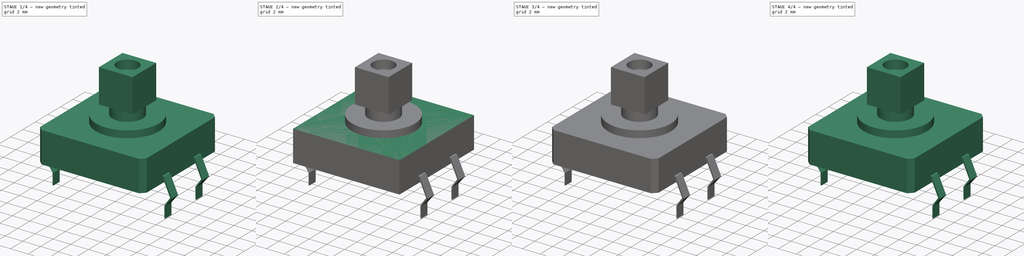
[diagram: build sequence overview — one tinted view per stage of 4, left to right]
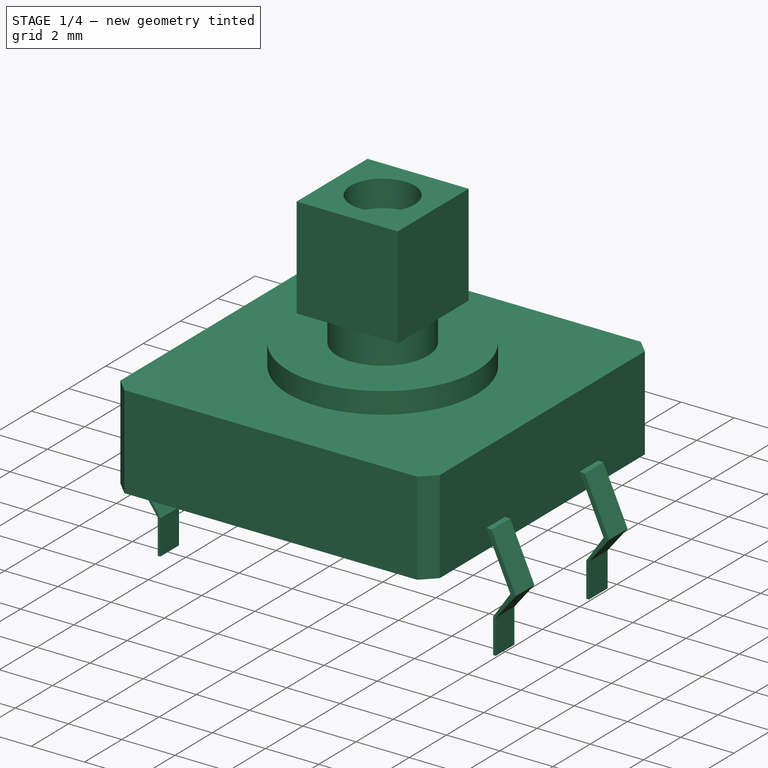
[diagram: stage 1 of 4 — iso view after this stage's code; geometry added in this stage tinted green]
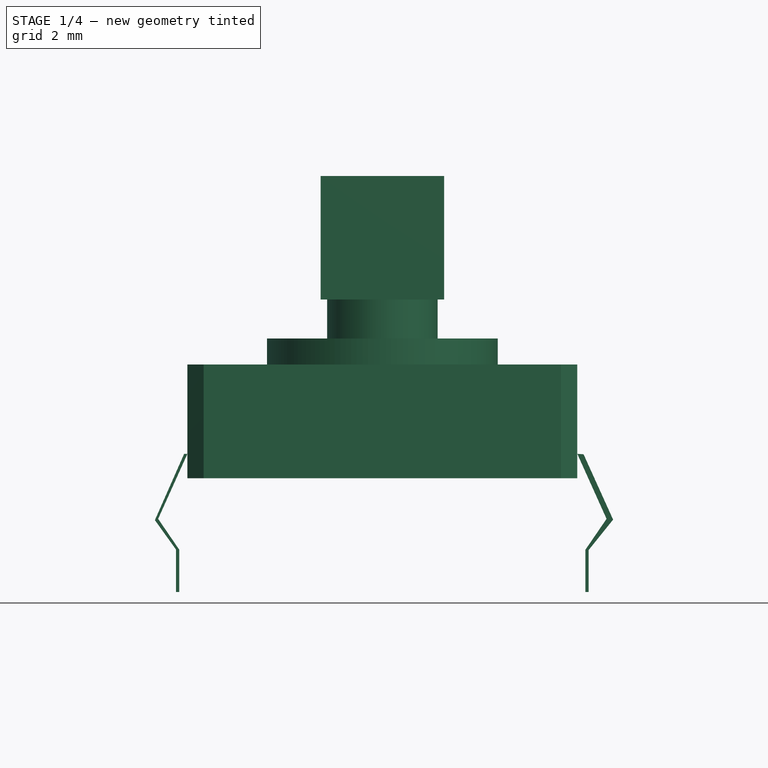
[diagram: stage 1 of 4 — front view after this stage's code; geometry added in this stage tinted green]
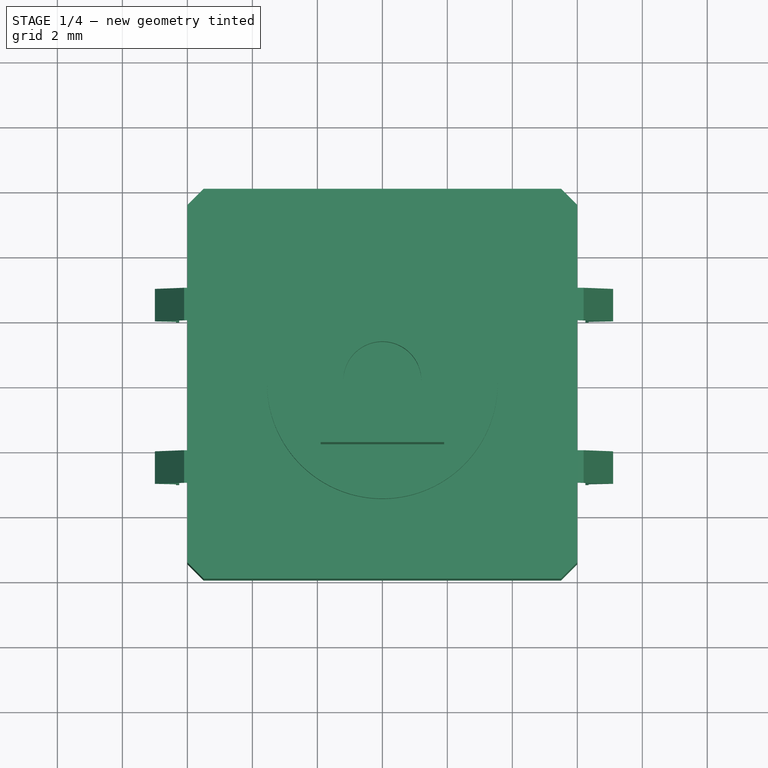
[diagram: stage 1 of 4 — top view after this stage's code; geometry added in this stage tinted green]
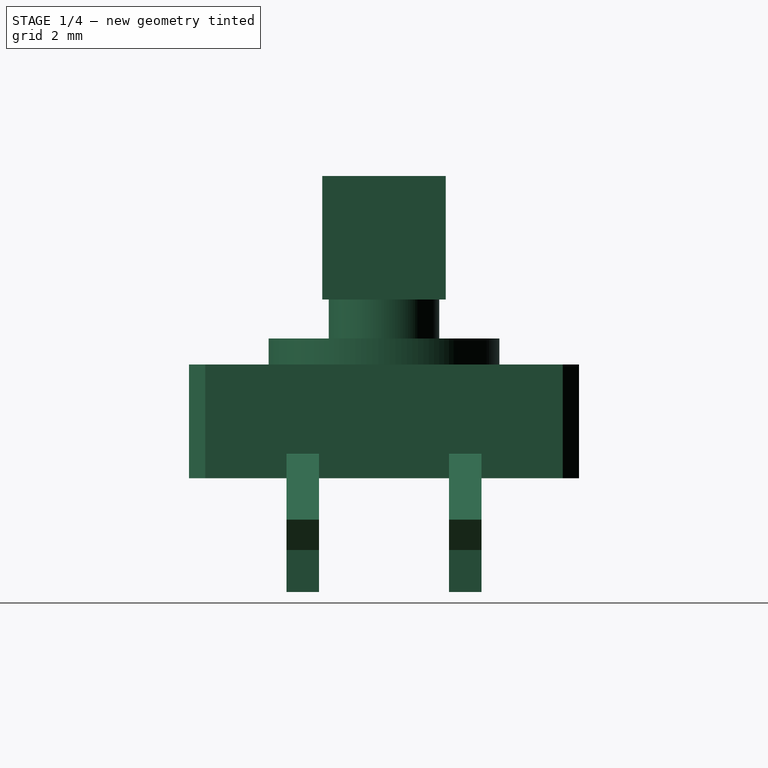
[diagram: stage 1 of 4 — right view after this stage's code; geometry added in this stage tinted green]
FCSTD DOCUMENT  (FreeCAD 0.16R6603 (Git))
Label: PushButton_omron_b3f
License: All rights reserved
LicenseURL: http://en.wikipedia.org/wiki/All_rights_reserved
objects: Sketcher::SketchObject×6, PartDesign::Pad×5, Part::Feature×2, PartDesign::Chamfer×1, PartDesign::Pocket×1, Part::FeaturePython×1, Part::MultiFuse×1
note: 23 computed .brp shape members not serialized (recipe doc carries the construction recipe); baked Part::Feature solids carry a one-line shape summary decoded from their .brp

FEATURE [Sketcher::SketchObject] Sketch005
  Placement = pos=(0,3,0) rot=(1,0,0;1.5708rad)
  sketch-geometry (16):
    g0: LineSegment StartX=12 StartY=0.75 StartZ=0 EndX=12.9 EndY=-1.25 EndZ=0
    g1: LineSegment StartX=12.9 StartY=-1.25 StartZ=0 EndX=12.25 EndY=-2.2 EndZ=0
    g2: LineSegment StartX=12.25 StartY=-2.2 StartZ=0 EndX=12.25 EndY=-3.5 EndZ=0
    g3: LineSegment StartX=0 StartY=0.75 StartZ=0 EndX=-0.9 EndY=-1.25 EndZ=0
    g4: LineSegment StartX=-0.9 StartY=-1.25 StartZ=0 EndX=-0.25 EndY=-2.2 EndZ=0
    g5: LineSegment StartX=-0.25 StartY=-2.2 StartZ=0 EndX=-0.25 EndY=-3.5 EndZ=0
    g6: LineSegment StartX=0 StartY=0.75 StartZ=0 EndX=-0.1 EndY=0.75 EndZ=0
    g7: LineSegment StartX=-0.1 StartY=0.75 StartZ=0 EndX=-1 EndY=-1.29007 EndZ=0
    g8: LineSegment StartX=-1 StartY=-1.29007 StartZ=0 EndX=-0.35 EndY=-2.19487 EndZ=0
    g9: LineSegment StartX=-0.35 StartY=-2.19487 StartZ=0 EndX=-0.35 EndY=-3.5 EndZ=0
    g10: LineSegment StartX=-0.35 StartY=-3.5 StartZ=0 EndX=-0.25 EndY=-3.5 EndZ=0
    g11: LineSegment StartX=12 StartY=0.75 StartZ=0 EndX=12.1 EndY=0.75 EndZ=0
    g12: LineSegment StartX=12.1 StartY=0.75 StartZ=0 EndX=13 EndY=-1.25 EndZ=0
    g13: LineSegment StartX=13 StartY=-1.25 StartZ=0 EndX=12.35 EndY=-2.20823 EndZ=0
    g14: LineSegment StartX=12.35 StartY=-2.20823 StartZ=0 EndX=12.35 EndY=-3.5 EndZ=0
    g15: LineSegment StartX=12.35 StartY=-3.5 StartZ=0 EndX=12.25 EndY=-3.5 EndZ=0
  constraints (46):
    c: Coincident(g0,g1)
    c: Coincident(g1,g2)
    c: Coincident(g3,g4)
    c: Coincident(g4,g5)
    c: Vertical(g5)
    c: Vertical(g2)
    c: DistanceX(g3,g0) = 12
    c: DistanceX(g3,g0) = 13.8
    c: DistanceX(g-1,g3) = -0.9
    c: DistanceY(g-1,g5) = -3.5
    c: Equal(g5,g2)
    c: DistanceX(g5,g2) = 12.5
    c: DistanceY(g0,g0) = -2
    c: PointOnObject(g3,g-2)
    c: DistanceY(g3,g3) = 2
    c: DistanceY(g-1,g3) = 0.75
    c: DistanceY(g-1,g0) = 0.75
    c: DistanceX(g-1,g5) = -0.25
    c: DistanceY(g5) = -1.3
    c: DistanceY(g-1,g2) = -3.5
    c: Coincident(g3,g6)
    c: Horizontal(g6)
    c: Coincident(g6,g7)
    c: Coincident(g7,g8)
    c: Coincident(g8,g9)
    c: Vertical(g9)
    c: Coincident(g9,g10)
    c: Horizontal(g10)
    c: DistanceX(g6) = -0.1
    c: DistanceX(g7,g3) = 0.1
    c: DistanceX(g8,g4) = 0.1
    c: Coincident(g5,g10)
    c: Coincident(g0,g11)
    c: Coincident(g11,g12)
    c: Coincident(g12,g13)
    c: Coincident(g13,g14)
    c: Vertical(g14)
    c: Coincident(g15,g2)
    c: Coincident(g14,g15)
    c: Horizontal(g15)
    c: DistanceX(g15) = -0.1
    c: DistanceX(g1,g13) = 0.1
    c: DistanceX(g12,g0) = -0.1
    c: DistanceY(g12,g0) = 0
    c: DistanceX(g11,g0) = -0.1
    c: DistanceY(g11,g0) = 0
FEATURE [PartDesign::Pad] Pad004
  Length = 1
  Length2 = 100
  Placement = pos=(0,3,0) rot=(1,0,0;1.5708rad)
  Reversed = true
  Sketch = -> Sketch005
  Type = 0
FEATURE [Part::Feature] Pocket001
  shape: bbox 12 x 12 x 9.3 mm, 21 faces (baked)
FEATURE [Part::Feature] Array001
  shape: bbox 14.1 x 6 x 4.25 mm, 40 faces, 4 solids (baked)
FEATURE [Part::MultiFuse] Fusion
  Shapes = -> [Pocket001,Array001]
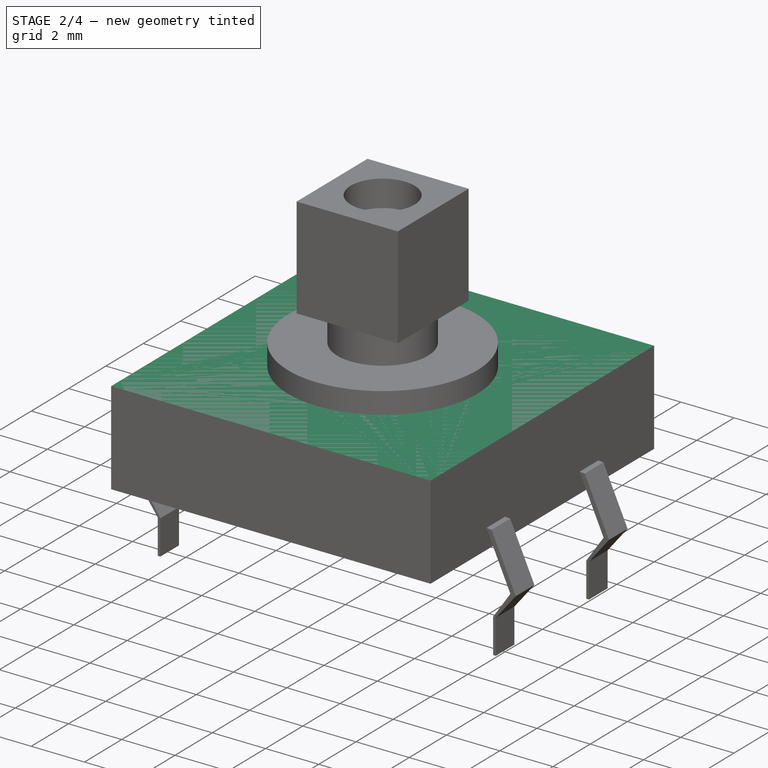
[diagram: stage 2 of 4 — iso view after this stage's code; geometry added in this stage tinted green]
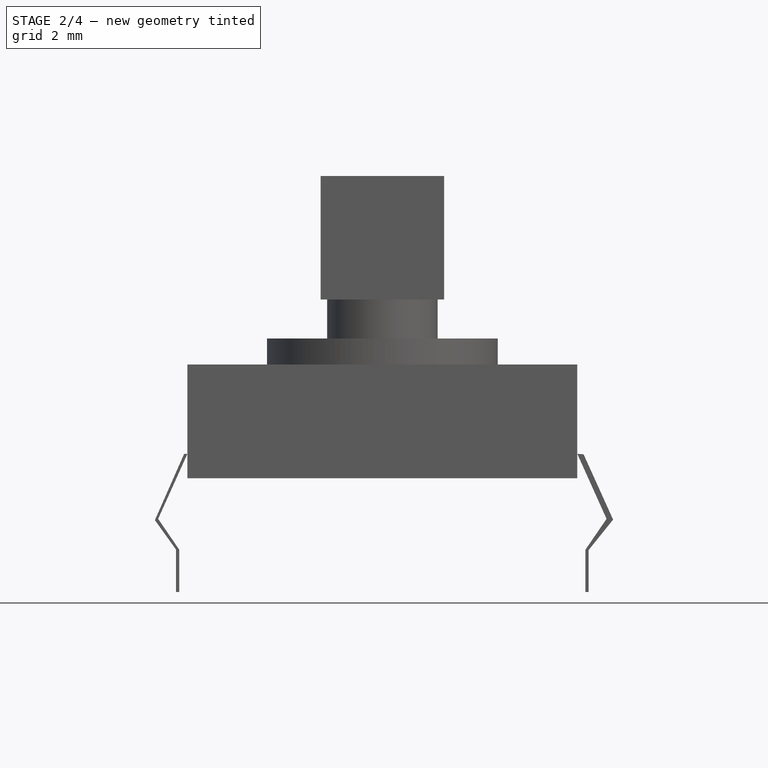
[diagram: stage 2 of 4 — front view after this stage's code; geometry added in this stage tinted green]
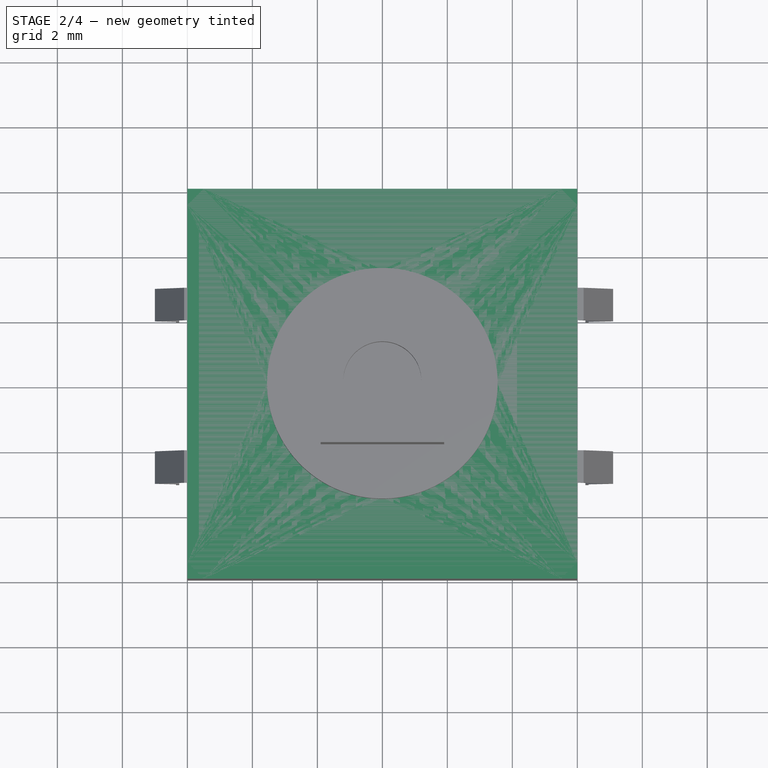
[diagram: stage 2 of 4 — top view after this stage's code; geometry added in this stage tinted green]
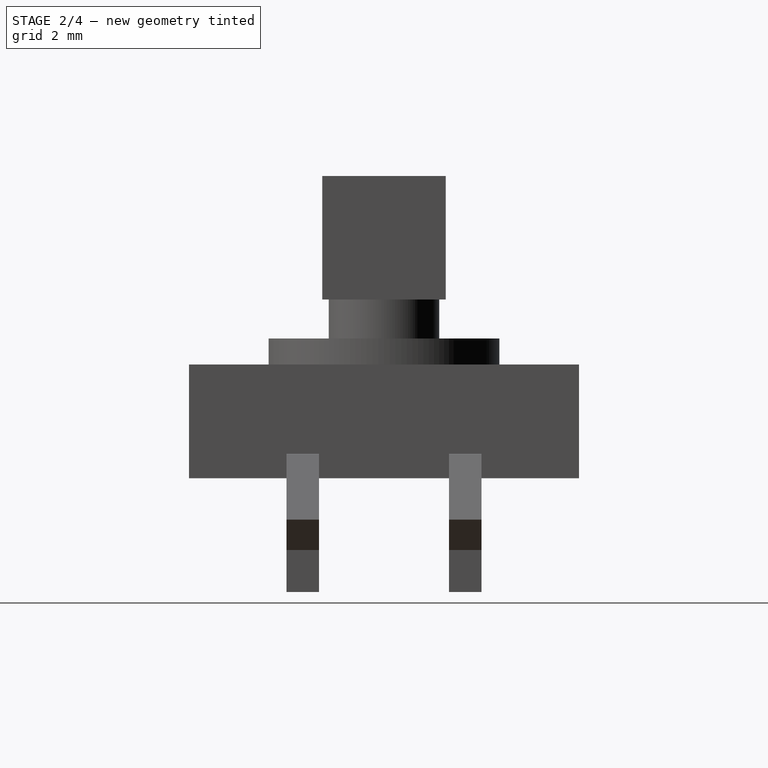
[diagram: stage 2 of 4 — right view after this stage's code; geometry added in this stage tinted green]
FEATURE [Sketcher::SketchObject] Sketch
  sketch-geometry (4):
    g0: LineSegment StartX=0 StartY=0 StartZ=0 EndX=12 EndY=0 EndZ=0
    g1: LineSegment StartX=12 StartY=0 StartZ=0 EndX=12 EndY=12 EndZ=0
    g2: LineSegment StartX=12 StartY=12 StartZ=0 EndX=0 EndY=12 EndZ=0
    g3: LineSegment StartX=0 StartY=12 StartZ=0 EndX=0 EndY=0 EndZ=0
  constraints (11):
    c: Coincident(g0,g1)
    c: Coincident(g1,g2)
    c: Coincident(g2,g3)
    c: Coincident(g3,g0)
    c: Horizontal(g0)
    c: Horizontal(g2)
    c: Vertical(g1)
    c: Vertical(g3)
    c: Coincident(g0,g-1)
    c: DistanceX(g2) = -12
    c: DistanceY(g1) = 12
FEATURE [PartDesign::Pad] Pad
  Length = 3.5
  Length2 = 100
  Sketch = -> Sketch
  Type = 0
FEATURE [Part::FeaturePython] Array  # Draft array (typed FeaturePython)
  Angle = 360
  ArrayType = 0
  Axis = (0,0,1)
  Base = -> Pad004
  Center = (0,0,0)
  Fuse = false
  IntervalAxis = (0,0,0)
  IntervalX = (1,0,0)
  IntervalY = (0,5,0)
  IntervalZ = (0,0,0)
  NumberPolar = 1
  NumberX = 1
  NumberY = 2
  NumberZ = 1
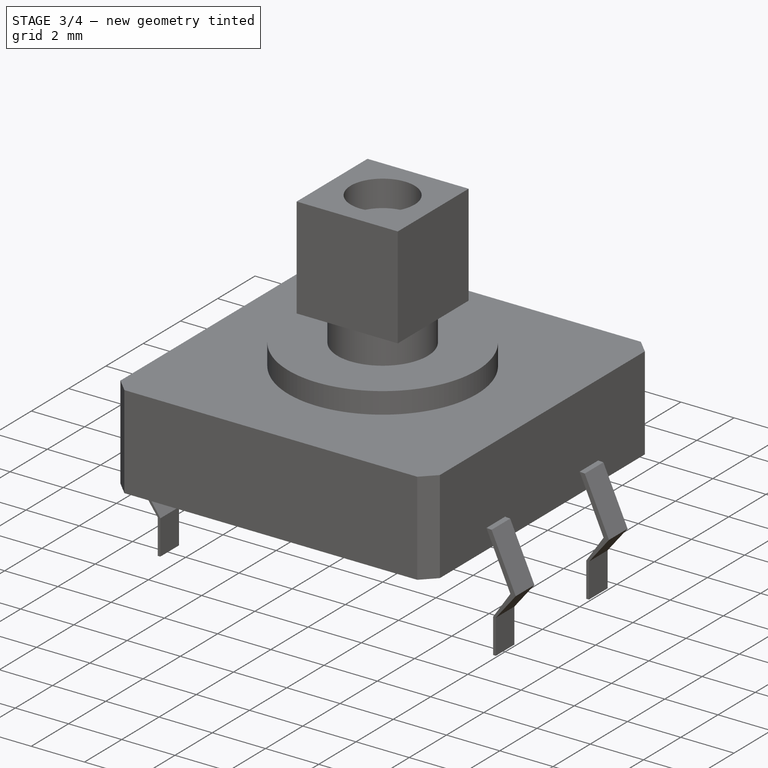
[diagram: stage 3 of 4 — iso view after this stage's code; geometry added in this stage tinted green]
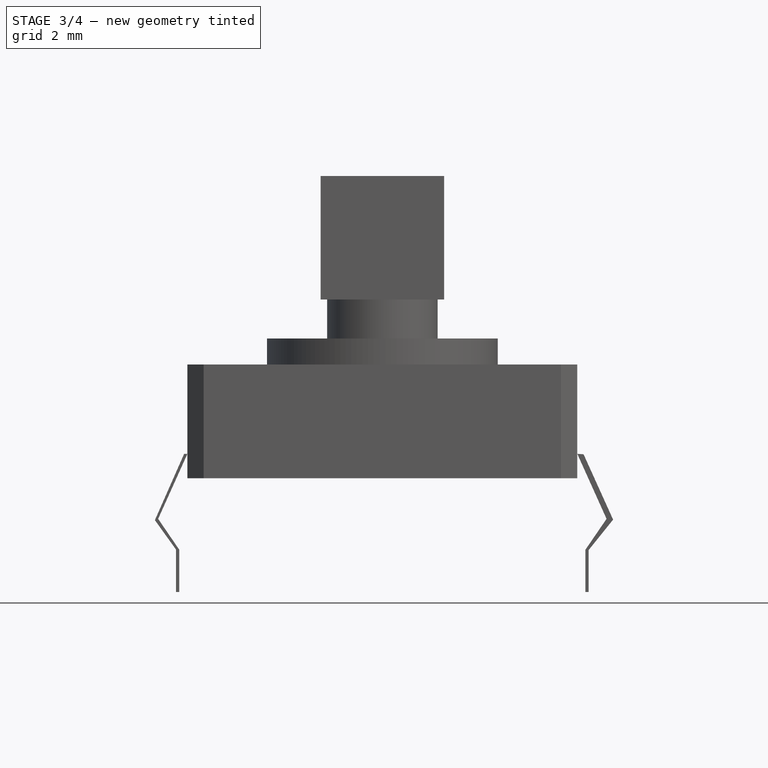
[diagram: stage 3 of 4 — front view after this stage's code; geometry added in this stage tinted green]
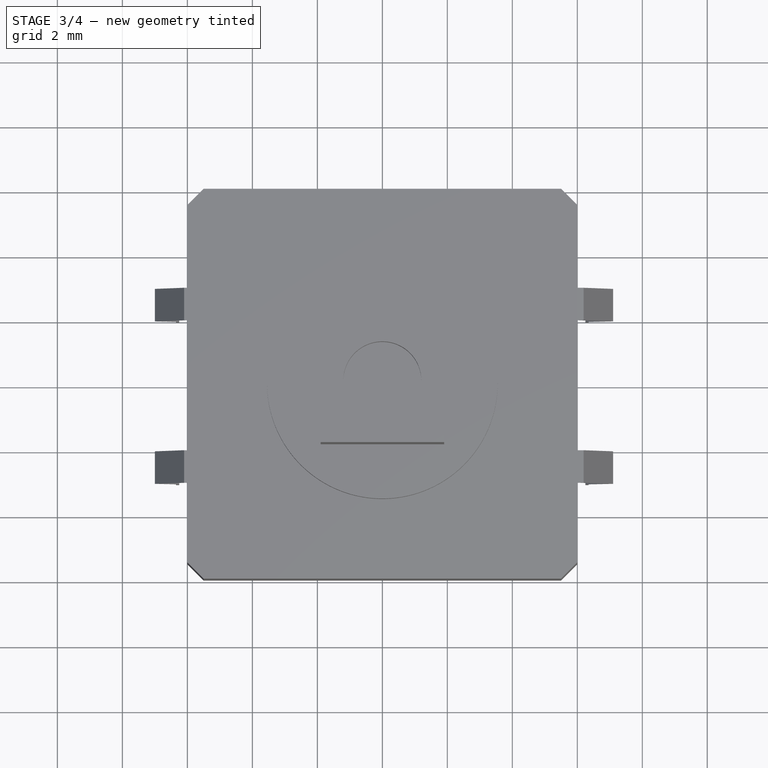
[diagram: stage 3 of 4 — top view after this stage's code; geometry added in this stage tinted green]
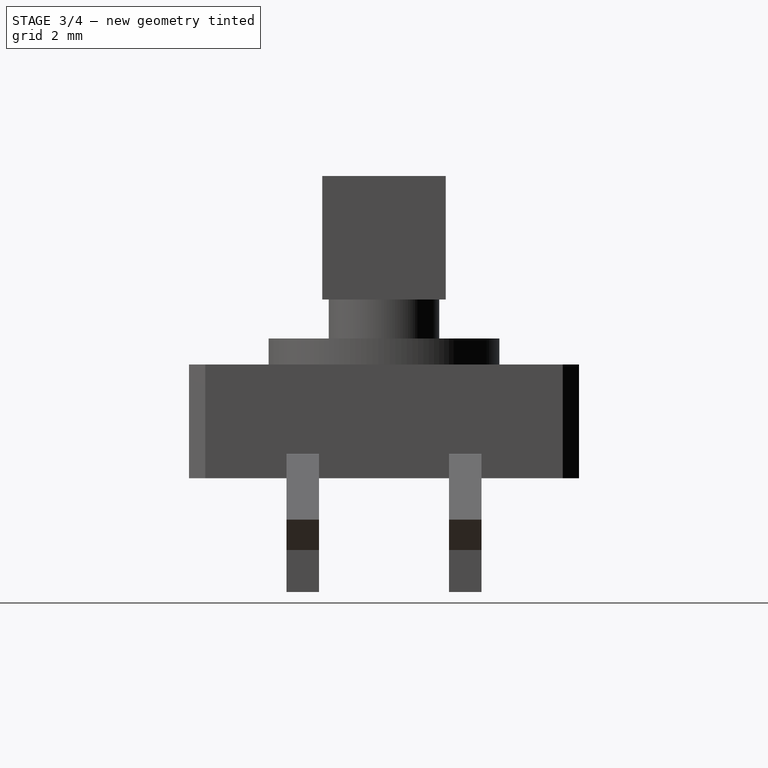
[diagram: stage 3 of 4 — right view after this stage's code; geometry added in this stage tinted green]
FEATURE [Sketcher::SketchObject] Sketch001
  ExternalGeometry = -> [Pad]
  Placement = pos=(0,0,3.5) rot=(0,0,1;0rad)
  Support = -> Pad [Face6]
  sketch-geometry (1):
    g0: Circle CenterX=6 CenterY=6 CenterZ=0 NormalX=0 NormalY=0 NormalZ=1 Radius=3.55
  constraints (2):
    c: Radius(g0) = 3.55
    c: Symmetric(g-1,g-3,g0)
FEATURE [PartDesign::Pad] Pad001
  Length = 0.8
  Length2 = 100
  Sketch = -> Sketch001
  Type = 0
  expr: Length = 4.3 - 3.5
FEATURE [PartDesign::Chamfer] Chamfer
  Base = -> Pad001 [Edge1,Edge5,Edge8,Edge2]
  Size = 0.5
FEATURE [Sketcher::SketchObject] Sketch002
  ExternalGeometry = -> [Chamfer]
  Placement = pos=(0,0,4.3) rot=(0,0,1;0rad)
  Support = -> Chamfer [Face12]
  sketch-geometry (1):
    g0: Circle CenterX=6 CenterY=6 CenterZ=0 NormalX=0 NormalY=0 NormalZ=1 Radius=1.7
  constraints (2):
    c: Coincident(g0,g-3)
    c: Radius(g0) = 1.7
FEATURE [PartDesign::Pad] Pad002
  Length = 1.2
  Length2 = 100
  Sketch = -> Sketch002
  Type = 0
  expr: Length = 7.3 - 1.8 - 4.3
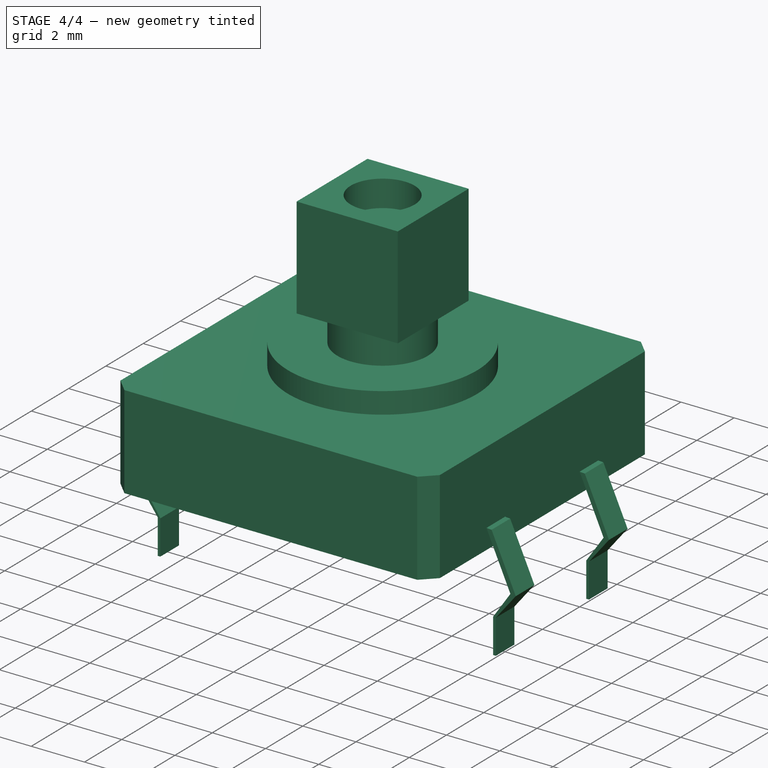
[diagram: stage 4 of 4 — iso view after this stage's code; geometry added in this stage tinted green]
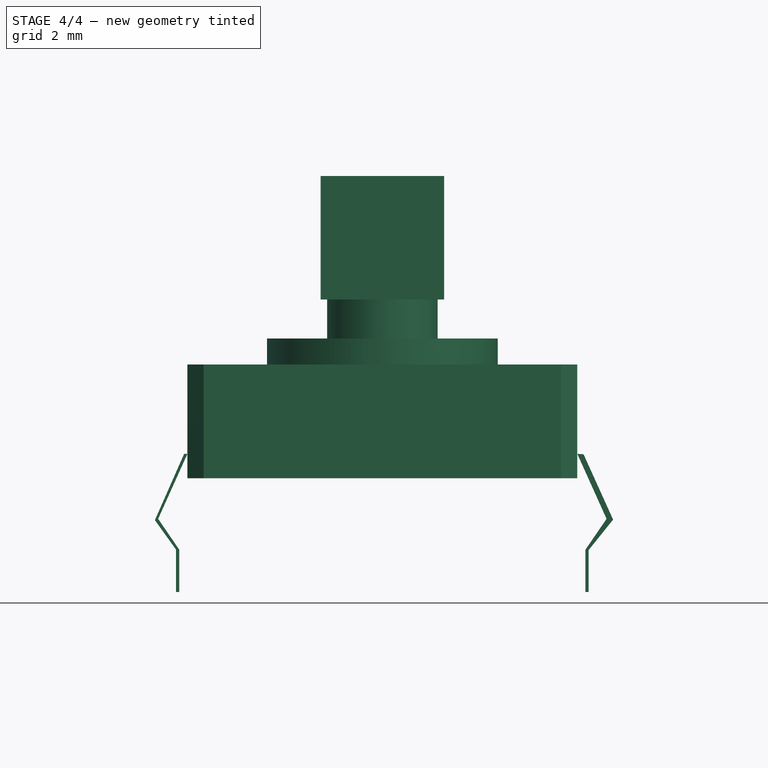
[diagram: stage 4 of 4 — front view after this stage's code; geometry added in this stage tinted green]
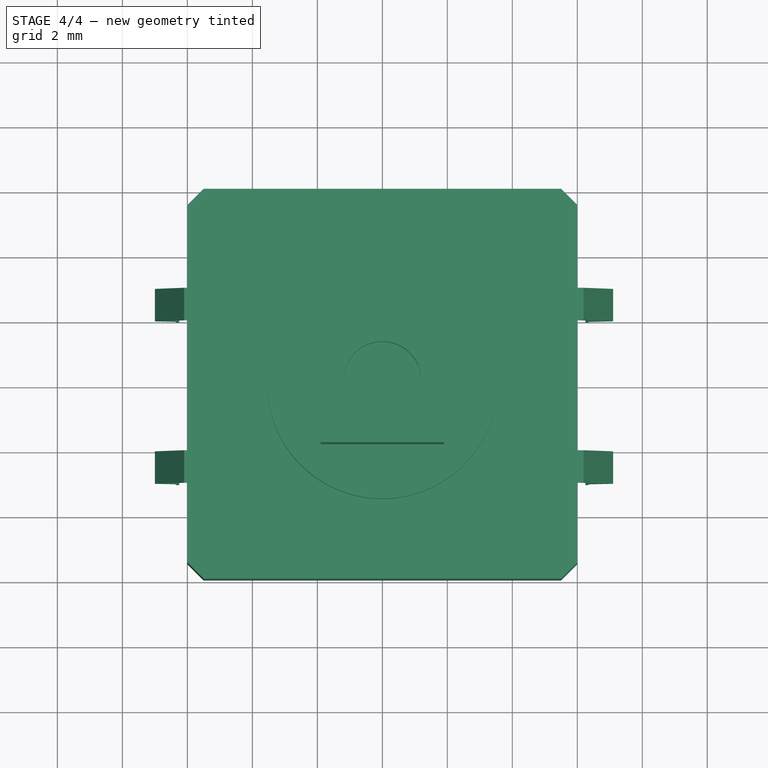
[diagram: stage 4 of 4 — top view after this stage's code; geometry added in this stage tinted green]
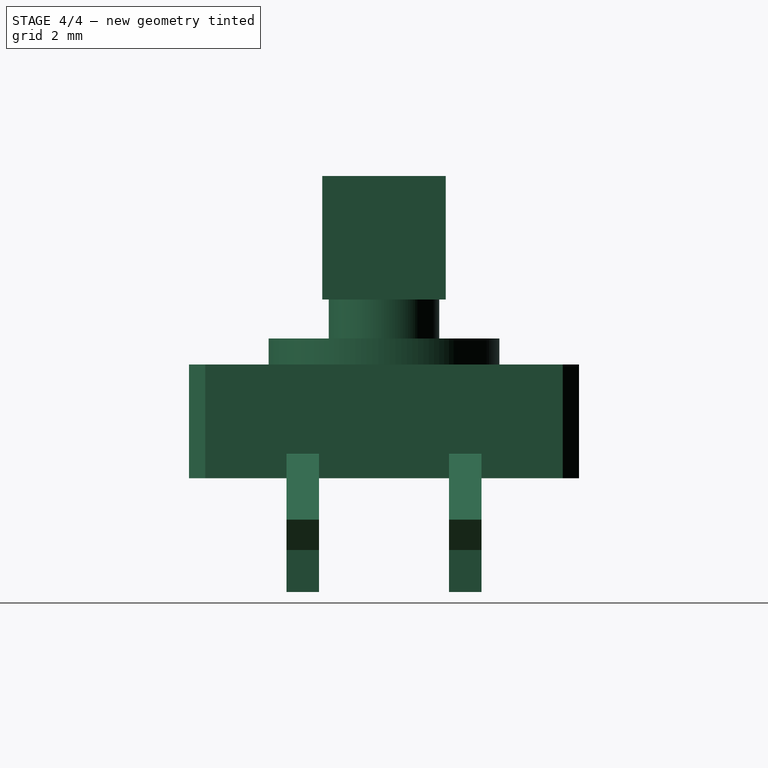
[diagram: stage 4 of 4 — right view after this stage's code; geometry added in this stage tinted green]
FEATURE [Sketcher::SketchObject] Sketch003
  ExternalGeometry = -> [Pad002]
  Placement = pos=(0,0,5.5) rot=(0,0,1;0rad)
  Support = -> Pad002 [Face1]
  sketch-geometry (4):
    g0: LineSegment StartX=4.1 StartY=7.9 StartZ=0 EndX=7.9 EndY=7.9 EndZ=0
    g1: LineSegment StartX=7.9 StartY=7.9 StartZ=0 EndX=7.9 EndY=4.1 EndZ=0
    g2: LineSegment StartX=7.9 StartY=4.1 StartZ=0 EndX=4.1 EndY=4.1 EndZ=0
    g3: LineSegment StartX=4.1 StartY=4.1 StartZ=0 EndX=4.1 EndY=7.9 EndZ=0
  constraints (11):
    c: Coincident(g0,g1)
    c: Coincident(g1,g2)
    c: Coincident(g2,g3)
    c: Coincident(g3,g0)
    c: Horizontal(g0)
    c: Horizontal(g2)
    c: Vertical(g1)
    c: Vertical(g3)
    c: Symmetric(g2,g0,g-3)
    c: DistanceX(g0) = 3.8
    c: DistanceY(g1) = -3.8
FEATURE [PartDesign::Pad] Pad003
  Length = 3.8
  Length2 = 100
  Sketch = -> Sketch003
  Type = 0
FEATURE [Sketcher::SketchObject] Sketch004
  ExternalGeometry = -> [Pad003]
  Placement = pos=(0,0,9.3) rot=(0,0,1;0rad)
  Support = -> Pad003 [Face19]
  sketch-geometry (1):
    g0: Circle CenterX=6 CenterY=6 CenterZ=0 NormalX=0 NormalY=0 NormalZ=1 Radius=1.2
  constraints (2):
    c: Symmetric(g-4,g-3,g0)
    c: Radius(g0) = 1.2
FEATURE [PartDesign::Pocket] Pocket
  Length = 1
  Sketch = -> Sketch004
  Type = 0
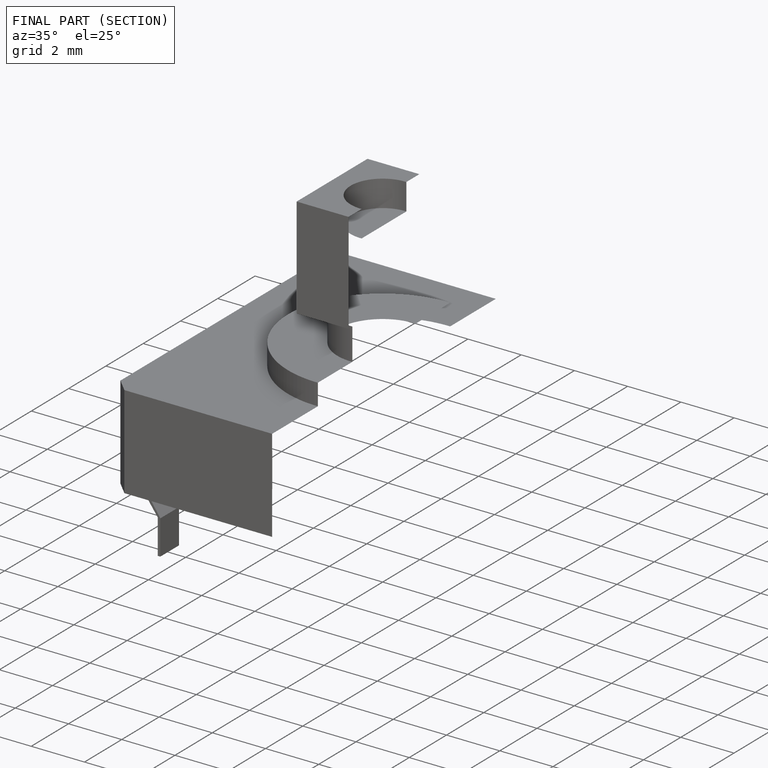
[diagram: finished part — half-section view (interior)]
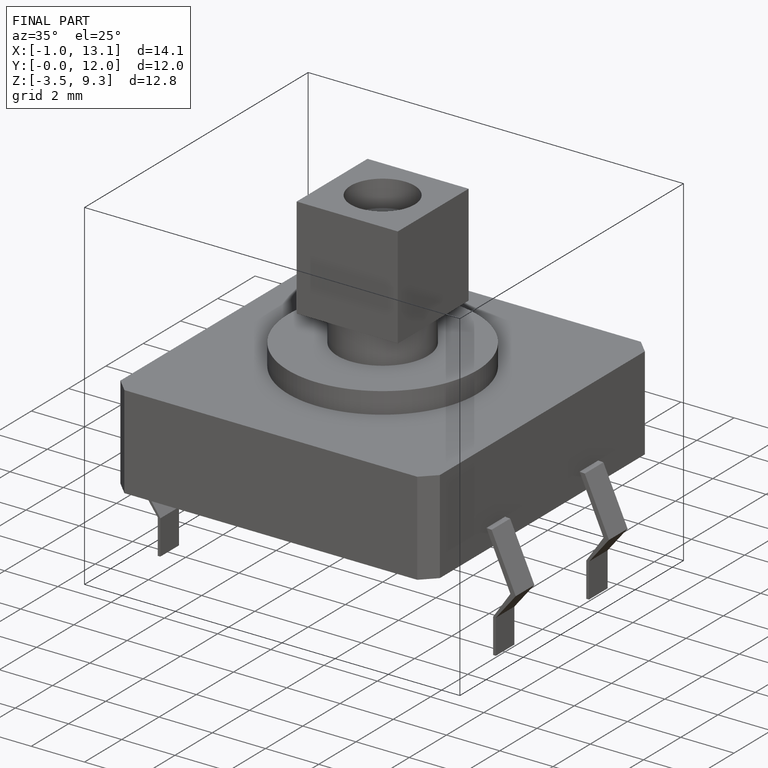
[diagram: finished part — iso view with bounding-box wireframe]
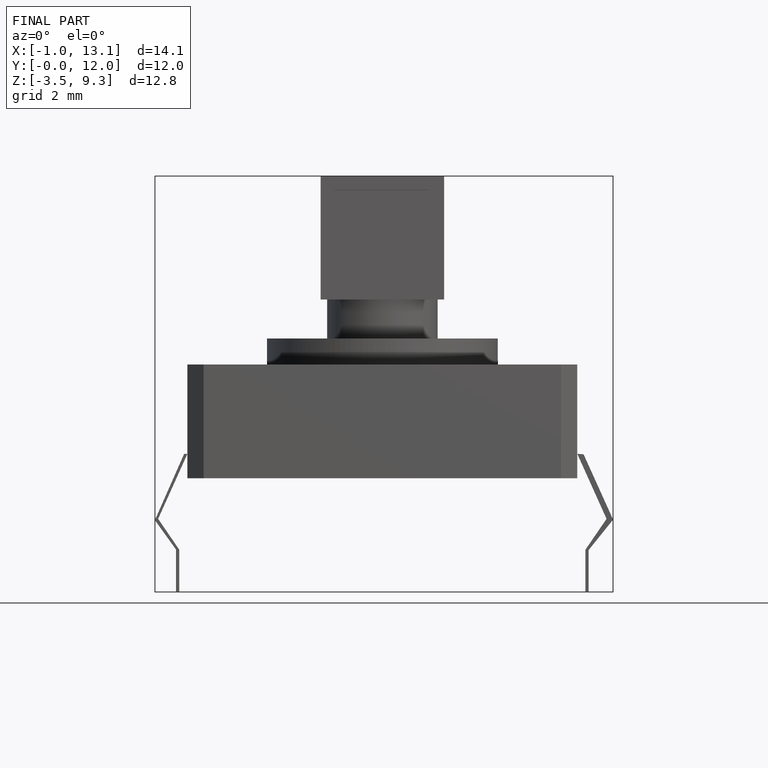
[diagram: finished part — front view with bounding-box wireframe]
